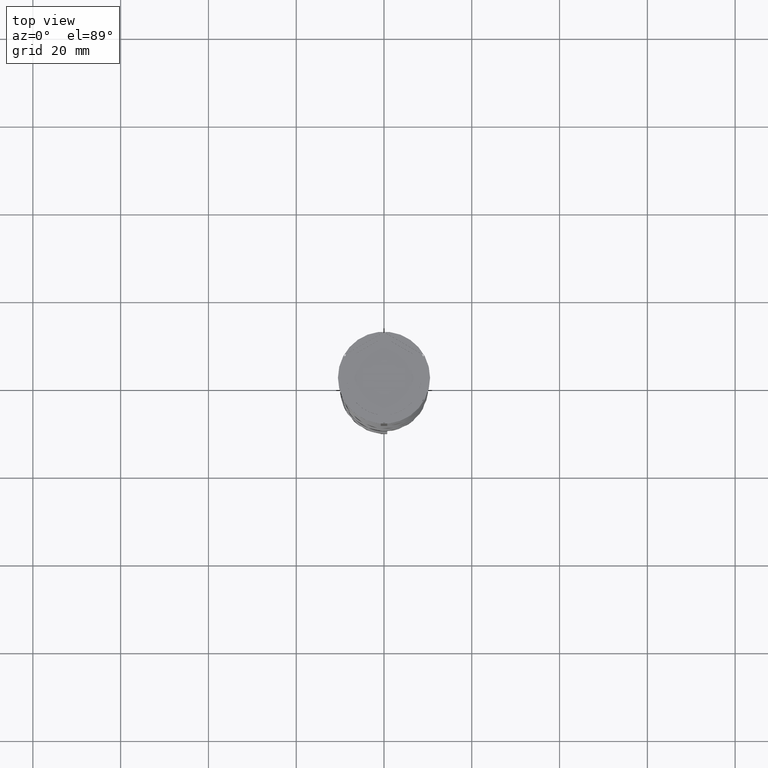
[diagram: clean part render]
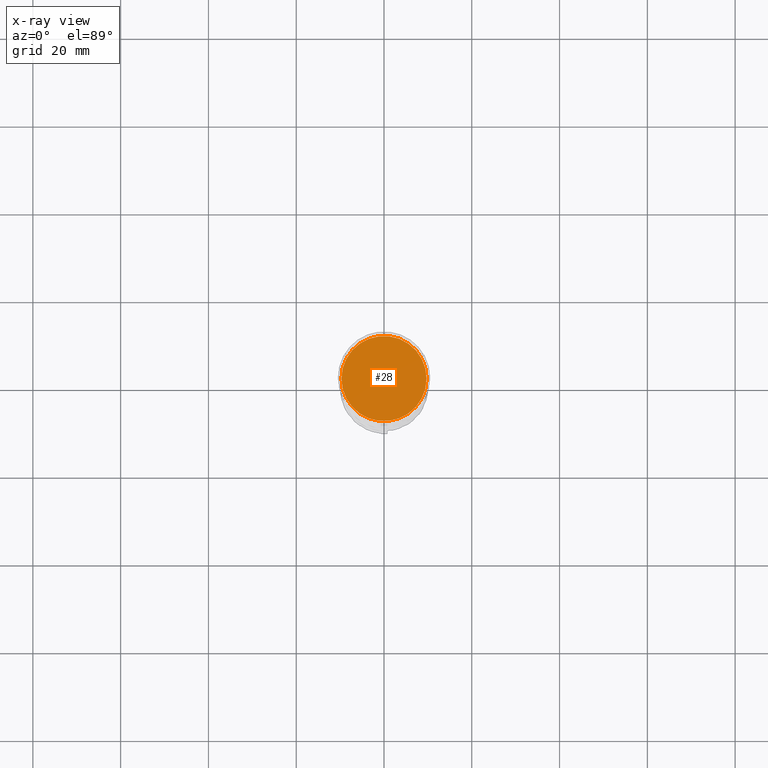
[diagram: x-ray — body ghosted, one internal face saturated and labeled with its STEP entity id]
A machine part, top view, then the same camera in x-ray: the body is ghosted and one INTERNAL B-rep face — a face not visible from any outside direction — is saturated and labeled: STEP entity #28.
In plain terms, the highlighted planar face has unit normal (0, 0, -1).
Its self-contained STEP definition (entity closure, byte-faithful):
#6 = DIRECTION ( 'NONE',  ( -1.000000000000000000, 0.000000000000000000, 0.000000000000000000 ) ) ;
#28 = ADVANCED_FACE ( 'NONE', ( #1524 ), #1541, .F. ) ;
#159 = CARTESIAN_POINT ( 'NONE',  ( -9.700000000000002842, 0.000000000000000000, -12.00000000000000000 ) ) ;
#252 = EDGE_CURVE ( 'NONE', #2308, #2876, #2587, .T. ) ;
#401 = DIRECTION ( 'NONE',  ( -1.000000000000000000, 0.000000000000000000, 0.000000000000000000 ) ) ;
#742 = AXIS2_PLACEMENT_3D ( 'NONE', #3774, #1036, #401 ) ;
#780 = ORIENTED_EDGE ( 'NONE', *, *, #1231, .T. ) ;
#1036 = DIRECTION ( 'NONE',  ( -0.000000000000000000, -0.000000000000000000, 1.000000000000000000 ) ) ;
#1231 = EDGE_CURVE ( 'NONE', #2876, #2308, #2895, .T. ) ;
#1524 = FACE_OUTER_BOUND ( 'NONE', #2482, .T. ) ;
#1541 = PLANE ( 'NONE',  #3785 ) ;
#1804 = CARTESIAN_POINT ( 'NONE',  ( 0.000000000000000000, 0.000000000000000000, -12.00000000000000000 ) ) ;
#1826 = DIRECTION ( 'NONE',  ( -1.000000000000000000, 0.000000000000000000, -0.000000000000000000 ) ) ;
#2146 = ORIENTED_EDGE ( 'NONE', *, *, #252, .T. ) ;
#2308 = VERTEX_POINT ( 'NONE', #159 ) ;
#2386 = CARTESIAN_POINT ( 'NONE',  ( 0.000000000000000000, 0.000000000000000000, -12.00000000000000000 ) ) ;
#2482 = EDGE_LOOP ( 'NONE', ( #2146, #780 ) ) ;
#2587 = CIRCLE ( 'NONE', #742, 9.700000000000002842 ) ;
#2756 = DIRECTION ( 'NONE',  ( 0.000000000000000000, 0.000000000000000000, -1.000000000000000000 ) ) ;
#2876 = VERTEX_POINT ( 'NONE', #3458 ) ;
#2895 = CIRCLE ( 'NONE', #3406, 9.700000000000002842 ) ;
#3406 = AXIS2_PLACEMENT_3D ( 'NONE', #2386, #3897, #6 ) ;
#3458 = CARTESIAN_POINT ( 'NONE',  ( 9.700000000000002842, 1.206277097160143024E-15, -12.00000000000000000 ) ) ;
#3774 = CARTESIAN_POINT ( 'NONE',  ( 0.000000000000000000, 0.000000000000000000, -12.00000000000000000 ) ) ;
#3785 = AXIS2_PLACEMENT_3D ( 'NONE', #1804, #2756, #1826 ) ;
#3897 = DIRECTION ( 'NONE',  ( -0.000000000000000000, -0.000000000000000000, 1.000000000000000000 ) ) ;